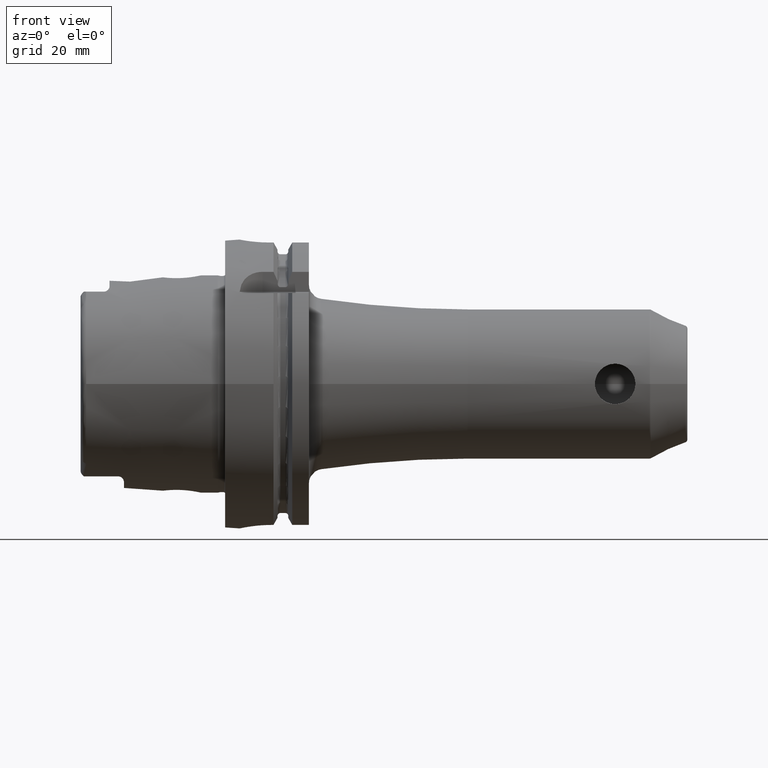
[diagram: clean part render]
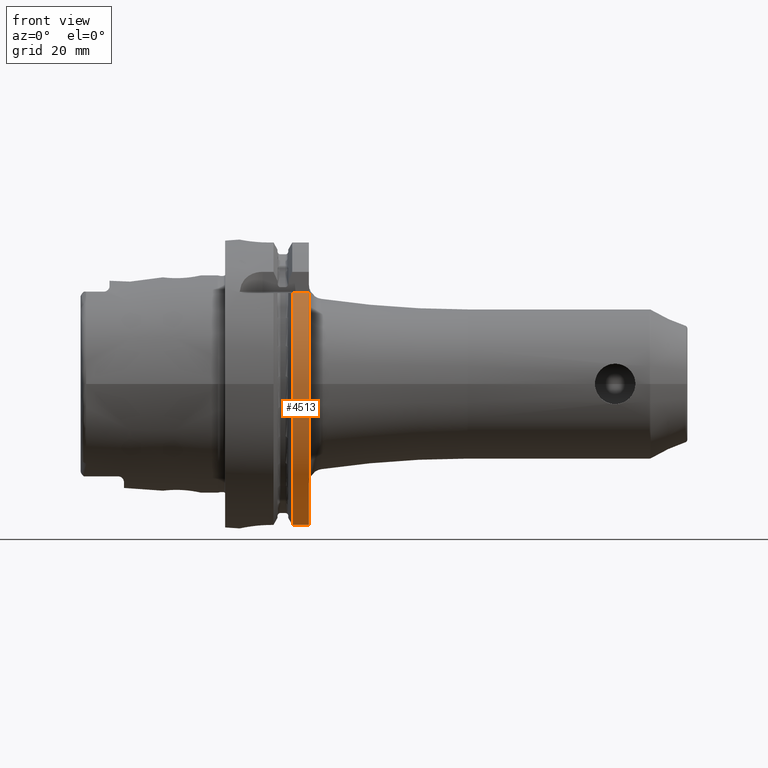
[diagram: same view with one face highlighted and labeled with its STEP entity id]
A machine part, front view. The second image highlights one B-rep face of the part: STEP entity #4513.
In plain terms, the highlighted cylindrical surface (partial cylindrical patch) has radius 50 mm, axis along (1, 0, 0).
Its self-contained STEP definition (entity closure, byte-faithful):
#1123=DIRECTION('',(1.E0,0.E0,0.E0));
#1124=VECTOR('',#1123,5.752404735808E0);
#1125=CARTESIAN_POINT('',(2.324759526419E1,-3.882975663071E1,3.15E1));
#1126=LINE('',#1125,#1124);
#1127=CARTESIAN_POINT('',(2.9E1,0.E0,0.E0));
#1128=DIRECTION('',(1.E0,0.E0,0.E0));
#1129=DIRECTION('',(0.E0,-7.765951326142E-1,6.3E-1));
#1130=AXIS2_PLACEMENT_3D('',#1127,#1128,#1129);
#1132=DIRECTION('',(1.E0,0.E0,0.E0));
#1133=VECTOR('',#1132,5.752404735808E0);
#1134=CARTESIAN_POINT('',(2.324759526419E1,-1.1E1,-4.877499359303E1));
#1135=LINE('',#1134,#1133);
#1677=CARTESIAN_POINT('',(2.324759526419E1,0.E0,0.E0));
#1678=DIRECTION('',(1.E0,0.E0,0.E0));
#1679=DIRECTION('',(0.E0,-7.765951326142E-1,6.3E-1));
#1680=AXIS2_PLACEMENT_3D('',#1677,#1678,#1679);
#3194=CARTESIAN_POINT('',(2.324759526419E1,-1.1E1,-4.877499359303E1));
#3195=CARTESIAN_POINT('',(2.9E1,-1.1E1,-4.877499359303E1));
#3196=VERTEX_POINT('',#3194);
#3197=VERTEX_POINT('',#3195);
#3244=CARTESIAN_POINT('',(2.324759526419E1,-3.882975663071E1,3.15E1));
#3245=CARTESIAN_POINT('',(2.9E1,-3.882975663071E1,3.15E1));
#3246=VERTEX_POINT('',#3244);
#3247=VERTEX_POINT('',#3245);
#4500=CARTESIAN_POINT('',(-5.395E1,0.E0,0.E0));
#4501=DIRECTION('',(1.E0,0.E0,0.E0));
#4502=DIRECTION('',(0.E0,-1.E0,0.E0));
#4503=AXIS2_PLACEMENT_3D('',#4500,#4501,#4502);
#4504=CYLINDRICAL_SURFACE('',#4503,5.E1);
#4505=ORIENTED_EDGE('',*,*,#4464,.T.);
#4506=ORIENTED_EDGE('',*,*,#4446,.T.);
#4508=ORIENTED_EDGE('',*,*,#4507,.F.);
#4510=ORIENTED_EDGE('',*,*,#4509,.F.);
#4511=EDGE_LOOP('',(#4505,#4506,#4508,#4510));
#4512=FACE_OUTER_BOUND('',#4511,.F.);
#4513=ADVANCED_FACE('',(#4512),#4504,.T.);
#1131=CIRCLE('',#1130,5.E1);
#1681=CIRCLE('',#1680,5.E1);
#4446=EDGE_CURVE('',#3247,#3197,#1131,.T.);
#4464=EDGE_CURVE('',#3246,#3247,#1126,.T.);
#4507=EDGE_CURVE('',#3196,#3197,#1135,.T.);
#4509=EDGE_CURVE('',#3246,#3196,#1681,.T.);